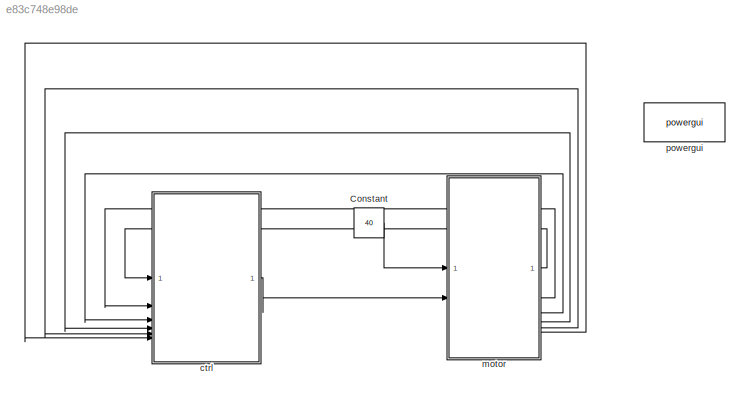
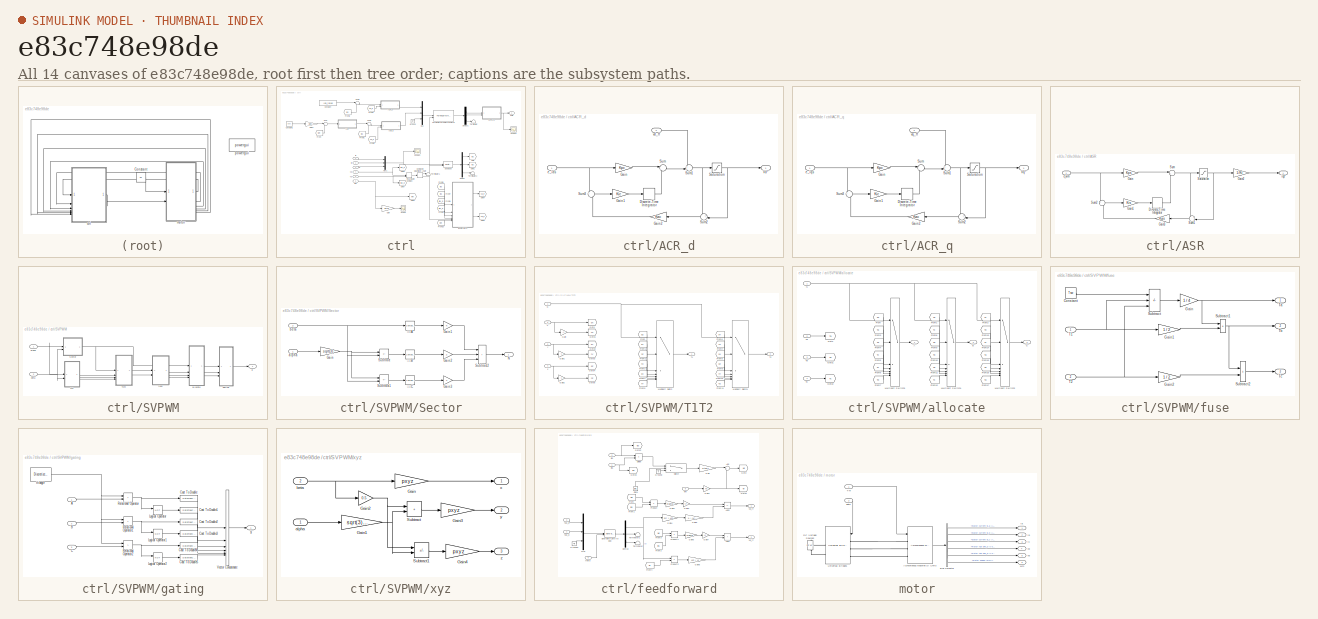
[diagram: thumbnail index - all 14 canvases of the model, root first then tree order]
MODEL slx_e83c748e98de
KIND model
CONFIG AbsTol = auto
CONFIG EnableMultiTasking = off
CONFIG FixedStep = auto
CONFIG MaxStep = auto
CONFIG MinStep = auto
CONFIG RelTol = 1e-3
CONFIG SampleTimeConstraint = Unconstrained
CONFIG SolverName = FixedStepDiscrete
CONFIG StartTime = 0.0
CONFIG StopTime = 1
BLOCK [Constant] Constant
  Value = 40
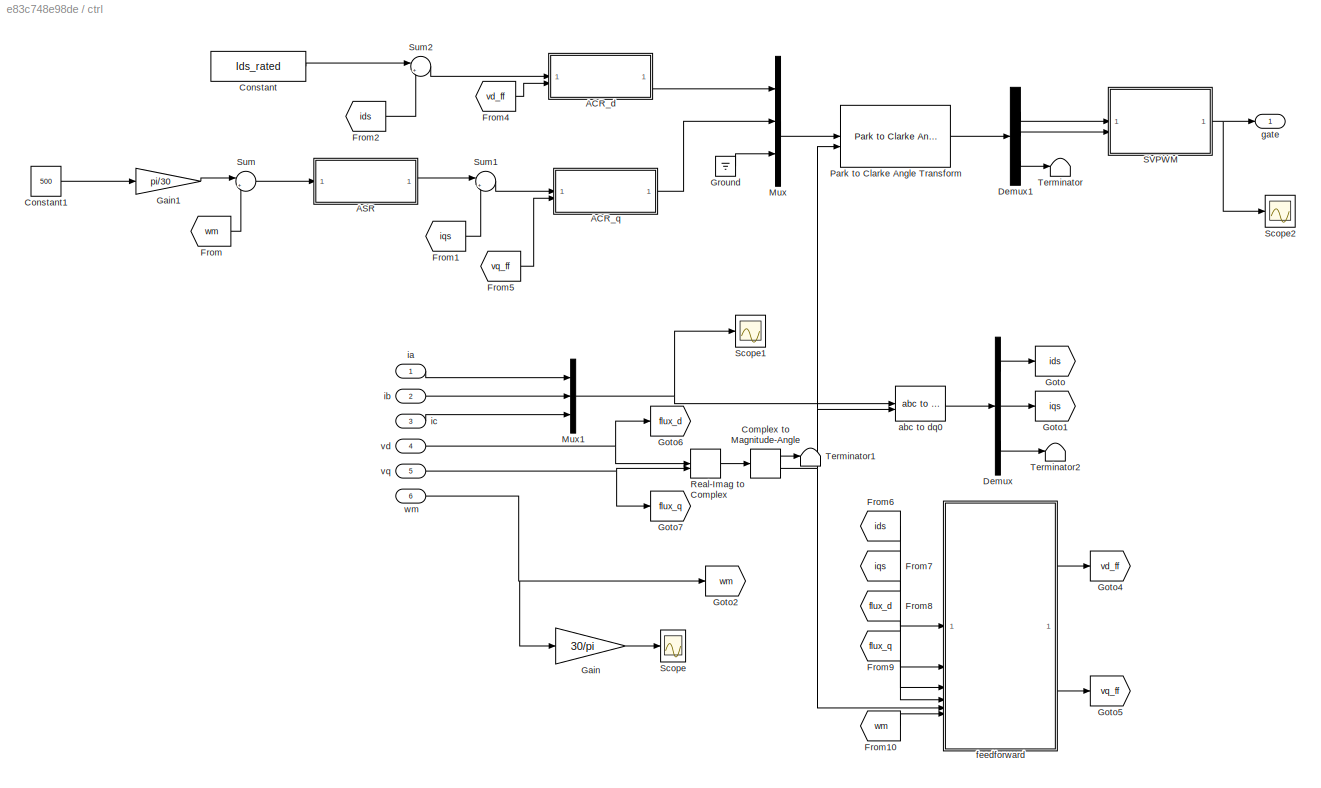
BLOCK [SubSystem] ctrl
BLOCK [SubSystem] ctrl/ACR_d
BLOCK [DiscreteIntegrator] ctrl/ACR_d/Discrete-Time Integrator
  ICPrevOutput = DiscIntNeverNeededParam
  ICPrevScaledInput = DiscIntNeverNeededParam
  InitialConditionSetting = Auto
  SampleTime = -1
BLOCK [Gain] ctrl/ACR_d/Gain
  Gain = Kpc
BLOCK [Gain] ctrl/ACR_d/Gain1
  Gain = Kic
BLOCK [Gain] ctrl/ACR_d/Gain2
  Gain = Kac
BLOCK [Saturate] ctrl/ACR_d/Saturation
  LowerLimit = -V_max * 2
  UpperLimit = V_max * 2
BLOCK [Sum] ctrl/ACR_d/Sum
  Inputs = |++
BLOCK [Sum] ctrl/ACR_d/Sum1
  Inputs = ++|
BLOCK [Sum] ctrl/ACR_d/Sum2
  Inputs = +-|
BLOCK [Sum] ctrl/ACR_d/Sum3
  Inputs = +|-
BLOCK [Outport] ctrl/ACR_d/Vd*
BLOCK [Inport] ctrl/ACR_d/e_ids
BLOCK [Inport] ctrl/ACR_d/vd_ff
  Port = 2
BLOCK [SubSystem] ctrl/ACR_q
BLOCK [DiscreteIntegrator] ctrl/ACR_q/Discrete-Time Integrator
  ICPrevOutput = DiscIntNeverNeededParam
  ICPrevScaledInput = DiscIntNeverNeededParam
  InitialConditionSetting = Auto
  SampleTime = -1
BLOCK [Gain] ctrl/ACR_q/Gain
  Gain = Kpc
BLOCK [Gain] ctrl/ACR_q/Gain1
  Gain = Kic
BLOCK [Gain] ctrl/ACR_q/Gain2
  Gain = Kac
BLOCK [Saturate] ctrl/ACR_q/Saturation
  LowerLimit = -V_max * 2
  UpperLimit = V_max * 2
BLOCK [Sum] ctrl/ACR_q/Sum
  Inputs = |++
BLOCK [Sum] ctrl/ACR_q/Sum1
  Inputs = ++|
BLOCK [Sum] ctrl/ACR_q/Sum2
  Inputs = +-|
BLOCK [Sum] ctrl/ACR_q/Sum3
  Inputs = +|-
BLOCK [Outport] ctrl/ACR_q/Vq*
BLOCK [Inport] ctrl/ACR_q/e_iqs
BLOCK [Inport] ctrl/ACR_q/vq_ff
  Port = 2
BLOCK [SubSystem] ctrl/ASR
BLOCK [DiscreteIntegrator] ctrl/ASR/Discrete-Time Integrator
  ICPrevOutput = DiscIntNeverNeededParam
  ICPrevScaledInput = DiscIntNeverNeededParam
  InitialConditionSetting = Auto
  SampleTime = -1
BLOCK [Gain] ctrl/ASR/Gain
  Gain = Kps
BLOCK [Gain] ctrl/ASR/Gain1
  Gain = Kis
BLOCK [Gain] ctrl/ASR/Gain2
  Gain = 1/Kt
BLOCK [Gain] ctrl/ASR/Gain3
  Gain = Kas
  NameLocation = top
BLOCK [Saturate] ctrl/ASR/Saturation
  LowerLimit = -Te_rated
  UpperLimit = Te_rated
BLOCK [Sum] ctrl/ASR/Sum
  Inputs = |++
BLOCK [Sum] ctrl/ASR/Sum1
  Inputs = +-|
  NameLocation = top
BLOCK [Sum] ctrl/ASR/Sum2
  Inputs = +|-
BLOCK [Inport] ctrl/ASR/e_wm
BLOCK [Outport] ctrl/ASR/iqs*
BLOCK [ComplexToMagnitudeAngle] ctrl/Complex to Magnitude-Angle
BLOCK [Constant] ctrl/Constant
  Value = Ids_rated
BLOCK [Constant] ctrl/Constant1
  Value = 500
BLOCK [Demux] ctrl/Demux
  Outputs = 3
BLOCK [Demux] ctrl/Demux1
  Outputs = 3
BLOCK [From] ctrl/From
  GotoTag = wm
BLOCK [From] ctrl/From1
  GotoTag = iqs
BLOCK [From] ctrl/From10
  GotoTag = wm
BLOCK [From] ctrl/From2
  GotoTag = ids
BLOCK [From] ctrl/From4
  GotoTag = vd_ff
BLOCK [From] ctrl/From5
  GotoTag = vq_ff
BLOCK [From] ctrl/From6
  GotoTag = ids
BLOCK [From] ctrl/From7
  GotoTag = iqs
BLOCK [From] ctrl/From8
  GotoTag = flux_d
BLOCK [From] ctrl/From9
  GotoTag = flux_q
BLOCK [Gain] ctrl/Gain
  Gain = 30/pi
BLOCK [Gain] ctrl/Gain1
  Gain = pi/30
BLOCK [Goto] ctrl/Goto
  GotoTag = ids
BLOCK [Goto] ctrl/Goto1
  GotoTag = iqs
BLOCK [Goto] ctrl/Goto2
  GotoTag = wm
BLOCK [Goto] ctrl/Goto4
  GotoTag = vd_ff
BLOCK [Goto] ctrl/Goto5
  GotoTag = vq_ff
BLOCK [Goto] ctrl/Goto6
  GotoTag = flux_d
BLOCK [Goto] ctrl/Goto7
  GotoTag = flux_q
BLOCK [Ground] ctrl/Ground
BLOCK [Mux] ctrl/Mux
  DisplayOption = bar
  Inputs = 3
BLOCK [Mux] ctrl/Mux1
  DisplayOption = bar
  Inputs = 3
BLOCK [Reference] ctrl/Park to Clarke Angle Transform  REF=eeTransforms/Park to Clarke
Angle Transform
  SourceBlock = eeTransforms/Park to Clarke\nAngle Transform
  SourceType = Park to Clarke Angle Transform
BLOCK [RealImagToComplex] ctrl/Real-Imag to Complex
BLOCK [SubSystem] ctrl/SVPWM
BLOCK [SubSystem] ctrl/SVPWM/Sector
BLOCK [Gain] ctrl/SVPWM/Sector/Gain
  Gain = sqrt(3)
BLOCK [Gain] ctrl/SVPWM/Sector/Gain1
BLOCK [Gain] ctrl/SVPWM/Sector/Gain2
  Gain = 2
BLOCK [Gain] ctrl/SVPWM/Sector/Gain3
  Gain = 4
BLOCK [Outport] ctrl/SVPWM/Sector/N
BLOCK [Sum] ctrl/SVPWM/Sector/Subtract
  IconShape = rectangular
  Inputs = +-
BLOCK [Sum] ctrl/SVPWM/Sector/Subtract1
  IconShape = rectangular
  Inputs = --
BLOCK [Sum] ctrl/SVPWM/Sector/Subtract2
  IconShape = rectangular
  Inputs = +++
BLOCK [Inport] ctrl/SVPWM/Sector/alpha
BLOCK [Inport] ctrl/SVPWM/Sector/beta
  Port = 2
BLOCK [Reference] ctrl/SVPWM/Sector/准则A  REF=simulink/Logic and Bit
Operations/Compare
To Constant
  SourceBlock = simulink/Logic and Bit\nOperations/Compare\nTo Constant
  SourceType = Compare To Constant
BLOCK [Reference] ctrl/SVPWM/Sector/准则B  REF=simulink/Logic and Bit
Operations/Compare
To Constant
  SourceBlock = simulink/Logic and Bit\nOperations/Compare\nTo Constant
  SourceType = Compare To Constant
BLOCK [Reference] ctrl/SVPWM/Sector/准则C  REF=simulink/Logic and Bit
Operations/Compare
To Constant
  SourceBlock = simulink/Logic and Bit\nOperations/Compare\nTo Constant
  SourceType = Compare To Constant
BLOCK [SubSystem] ctrl/SVPWM/T1T2
BLOCK [From] ctrl/SVPWM/T1T2/From
  GotoTag = pZ
BLOCK [From] ctrl/SVPWM/T1T2/From1
  GotoTag = pY
BLOCK [From] ctrl/SVPWM/T1T2/From10
  GotoTag = nY
BLOCK [From] ctrl/SVPWM/T1T2/From11
  GotoTag = nZ
BLOCK [From] ctrl/SVPWM/T1T2/From2
  GotoTag = nZ
BLOCK [From] ctrl/SVPWM/T1T2/From3
  GotoTag = nX
BLOCK [From] ctrl/SVPWM/T1T2/From4
  GotoTag = pX
BLOCK [From] ctrl/SVPWM/T1T2/From5
  GotoTag = nY
BLOCK [From] ctrl/SVPWM/T1T2/From6
  GotoTag = pY
BLOCK [From] ctrl/SVPWM/T1T2/From7
  GotoTag = nX
BLOCK [From] ctrl/SVPWM/T1T2/From8
  GotoTag = pX
BLOCK [From] ctrl/SVPWM/T1T2/From9
  GotoTag = pZ
BLOCK [Gain] ctrl/SVPWM/T1T2/Gain
  Gain = -1
BLOCK [Gain] ctrl/SVPWM/T1T2/Gain1
  Gain = -1
BLOCK [Gain] ctrl/SVPWM/T1T2/Gain2
  Gain = -1
BLOCK [Goto] ctrl/SVPWM/T1T2/Goto
  GotoTag = pX
BLOCK [Goto] ctrl/SVPWM/T1T2/Goto1
  GotoTag = nX
BLOCK [Goto] ctrl/SVPWM/T1T2/Goto2
  GotoTag = pY
BLOCK [Goto] ctrl/SVPWM/T1T2/Goto3
  GotoTag = nY
BLOCK [Goto] ctrl/SVPWM/T1T2/Goto4
  GotoTag = pZ
BLOCK [Goto] ctrl/SVPWM/T1T2/Goto5
  GotoTag = nZ
BLOCK [MultiPortSwitch] ctrl/SVPWM/T1T2/Multiport Switch
  InputSameDT = off
  Inputs = 6
  SaturateOnIntegerOverflow = off
BLOCK [MultiPortSwitch] ctrl/SVPWM/T1T2/Multiport Switch1
  InputSameDT = off
  Inputs = 6
  SaturateOnIntegerOverflow = off
BLOCK [Inport] ctrl/SVPWM/T1T2/N
BLOCK [Outport] ctrl/SVPWM/T1T2/T1
BLOCK [Outport] ctrl/SVPWM/T1T2/T2
  Port = 2
BLOCK [Inport] ctrl/SVPWM/T1T2/X
  Port = 2
BLOCK [Inport] ctrl/SVPWM/T1T2/y
  Port = 3
BLOCK [Inport] ctrl/SVPWM/T1T2/z
  Port = 4
BLOCK [SubSystem] ctrl/SVPWM/allocate
BLOCK [Outport] ctrl/SVPWM/allocate/A
BLOCK [Outport] ctrl/SVPWM/allocate/B
  Port = 2
BLOCK [Outport] ctrl/SVPWM/allocate/C
  Port = 3
BLOCK [From] ctrl/SVPWM/allocate/From
  GotoTag = Tb
BLOCK [From] ctrl/SVPWM/allocate/From1
  GotoTag = Ta
BLOCK [From] ctrl/SVPWM/allocate/From10
  GotoTag = Tb
BLOCK [From] ctrl/SVPWM/allocate/From11
  GotoTag = Ta
BLOCK [From] ctrl/SVPWM/allocate/From12
  GotoTag = Tc
BLOCK [From] ctrl/SVPWM/allocate/From13
  GotoTag = Tb
BLOCK [From] ctrl/SVPWM/allocate/From14
  GotoTag = Tc
BLOCK [From] ctrl/SVPWM/allocate/From15
  GotoTag = Ta
BLOCK [From] ctrl/SVPWM/allocate/From16
  GotoTag = Tb
BLOCK [From] ctrl/SVPWM/allocate/From17
  GotoTag = Ta
BLOCK [From] ctrl/SVPWM/allocate/From2
  GotoTag = Tc
BLOCK [From] ctrl/SVPWM/allocate/From3
  GotoTag = Ta
BLOCK [From] ctrl/SVPWM/allocate/From4
  GotoTag = Ta
BLOCK [From] ctrl/SVPWM/allocate/From5
  GotoTag = Tc
BLOCK [From] ctrl/SVPWM/allocate/From6
  GotoTag = Tc
BLOCK [From] ctrl/SVPWM/allocate/From7
  GotoTag = Tb
BLOCK [From] ctrl/SVPWM/allocate/From8
  GotoTag = Tc
BLOCK [From] ctrl/SVPWM/allocate/From9
  GotoTag = Tb
BLOCK [Goto] ctrl/SVPWM/allocate/Goto
  GotoTag = Ta
BLOCK [Goto] ctrl/SVPWM/allocate/Goto1
  GotoTag = Tb
BLOCK [Goto] ctrl/SVPWM/allocate/Goto2
  GotoTag = Tc
BLOCK [MultiPortSwitch] ctrl/SVPWM/allocate/Multiport Switch1
  InputSameDT = off
  Inputs = 6
  SaturateOnIntegerOverflow = off
BLOCK [MultiPortSwitch] ctrl/SVPWM/allocate/Multiport Switch2
  InputSameDT = off
  Inputs = 6
  SaturateOnIntegerOverflow = off
BLOCK [MultiPortSwitch] ctrl/SVPWM/allocate/Multiport Switch3
  InputSameDT = off
  Inputs = 6
  SaturateOnIntegerOverflow = off
BLOCK [Inport] ctrl/SVPWM/allocate/N
BLOCK [Inport] ctrl/SVPWM/allocate/Ta
  Port = 2
BLOCK [Inport] ctrl/SVPWM/allocate/Tb
  Port = 3
BLOCK [Inport] ctrl/SVPWM/allocate/Tc
  Port = 4
BLOCK [Inport] ctrl/SVPWM/alpha
BLOCK [Inport] ctrl/SVPWM/beta
  Port = 2
BLOCK [SubSystem] ctrl/SVPWM/fuse
BLOCK [Constant] ctrl/SVPWM/fuse/Constant
  Value = Tsw
BLOCK [Gain] ctrl/SVPWM/fuse/Gain
  Gain = 1 / 4
BLOCK [Gain] ctrl/SVPWM/fuse/Gain1
  Gain = 1 / 2
BLOCK [Gain] ctrl/SVPWM/fuse/Gain2
  Gain = 1 / 2
BLOCK [Sum] ctrl/SVPWM/fuse/Subtract
  IconShape = rectangular
  Inputs = +--
BLOCK [Sum] ctrl/SVPWM/fuse/Subtract1
  IconShape = rectangular
BLOCK [Sum] ctrl/SVPWM/fuse/Subtract2
  IconShape = rectangular
BLOCK [Inport] ctrl/SVPWM/fuse/T1
BLOCK [Inport] ctrl/SVPWM/fuse/T2
  Port = 2
BLOCK [Outport] ctrl/SVPWM/fuse/Ta
BLOCK [Outport] ctrl/SVPWM/fuse/Tb
  Port = 2
BLOCK [Outport] ctrl/SVPWM/fuse/Tc
  Port = 3
BLOCK [Outport] ctrl/SVPWM/g
BLOCK [SubSystem] ctrl/SVPWM/gating
BLOCK [Inport] ctrl/SVPWM/gating/A
BLOCK [Inport] ctrl/SVPWM/gating/B
  Port = 2
BLOCK [Inport] ctrl/SVPWM/gating/C
  Port = 3
BLOCK [DataTypeConversion] ctrl/SVPWM/gating/Cast To Double
  OutDataTypeStr = double
  RndMeth = Floor
  SaturateOnIntegerOverflow = off
BLOCK [DataTypeConversion] ctrl/SVPWM/gating/Cast To Double1
  OutDataTypeStr = double
  RndMeth = Floor
  SaturateOnIntegerOverflow = off
BLOCK [DataTypeConversion] ctrl/SVPWM/gating/Cast To Double2
  OutDataTypeStr = double
  RndMeth = Floor
  SaturateOnIntegerOverflow = off
BLOCK [DataTypeConversion] ctrl/SVPWM/gating/Cast To Double3
  OutDataTypeStr = double
  RndMeth = Floor
  SaturateOnIntegerOverflow = off
BLOCK [DataTypeConversion] ctrl/SVPWM/gating/Cast To Double4
  OutDataTypeStr = double
  RndMeth = Floor
  SaturateOnIntegerOverflow = off
BLOCK [DataTypeConversion] ctrl/SVPWM/gating/Cast To Double5
  OutDataTypeStr = double
  RndMeth = Floor
  SaturateOnIntegerOverflow = off
BLOCK [Logic] ctrl/SVPWM/gating/Logical Operator
  AllPortsSameDT = off
  Operator = NOT
  OutDataTypeStr = boolean
BLOCK [Logic] ctrl/SVPWM/gating/Logical Operator1
  AllPortsSameDT = off
  Operator = NOT
  OutDataTypeStr = boolean
BLOCK [Logic] ctrl/SVPWM/gating/Logical Operator2
  AllPortsSameDT = off
  Operator = NOT
  OutDataTypeStr = boolean
BLOCK [RelationalOperator] ctrl/SVPWM/gating/Relational Operator
  InputSameDT = off
  Operator = >
  OutDataTypeStr = boolean
  RndMeth = Simplest
BLOCK [RelationalOperator] ctrl/SVPWM/gating/Relational Operator1
  InputSameDT = off
  Operator = >
  OutDataTypeStr = boolean
  RndMeth = Simplest
BLOCK [RelationalOperator] ctrl/SVPWM/gating/Relational Operator2
  InputSameDT = off
  Operator = >
  OutDataTypeStr = boolean
  RndMeth = Simplest
BLOCK [Concatenate] ctrl/SVPWM/gating/Vector Concatenate
  NumInputs = 6
BLOCK [Outport] ctrl/SVPWM/gating/g
BLOCK [Reference] ctrl/SVPWM/gating/triangle  REF=discretizing/Discretized  (lib defined in mdl_5048aa1cd587)
Repeating Sequence
  SourceBlock = discretizing/Discretized\nRepeating Sequence
  SourceType = DiscretizedRepeatingTable
BLOCK [SubSystem] ctrl/SVPWM/xyz
BLOCK [Gain] ctrl/SVPWM/xyz/Gain
  Gain = pxyz
BLOCK [Gain] ctrl/SVPWM/xyz/Gain1
  Gain = sqrt(3) / 2
BLOCK [Gain] ctrl/SVPWM/xyz/Gain2
  Gain = 0.5
BLOCK [Gain] ctrl/SVPWM/xyz/Gain3
  Gain = pxyz
BLOCK [Gain] ctrl/SVPWM/xyz/Gain4
  Gain = pxyz
BLOCK [Sum] ctrl/SVPWM/xyz/Subtract
  IconShape = rectangular
BLOCK [Sum] ctrl/SVPWM/xyz/Subtract1
  IconShape = rectangular
  Inputs = +-
BLOCK [Inport] ctrl/SVPWM/xyz/alpha
BLOCK [Inport] ctrl/SVPWM/xyz/beta
  Port = 2
BLOCK [Outport] ctrl/SVPWM/xyz/x
BLOCK [Outport] ctrl/SVPWM/xyz/y
  Port = 2
BLOCK [Outport] ctrl/SVPWM/xyz/z
  Port = 3
BLOCK [Scope] ctrl/Scope
  Floating = off
  NumInputPorts = 1
  ScopeSpecificationString = Simulink.scopes.TimeScopeBlockCfg('CurrentConfiguration', extmgr.ConfigurationSet(extmgr.Configuration('Core','General UI',true),extmgr.Configuration('Core','Source UI',true),extmgr.Configuration('Sources','WiredSimulink',true),extmgr.Configuration('Visuals','Time Domain',true,'SerializedDisplays',{struct('MinYLimReal','-140.00871','MaxYLimReal','587.69926','YLabelReal','','MinYLimMag',' 0.00000',...<+1439ch>
BLOCK [Scope] ctrl/Scope1
  Floating = off
  NumInputPorts = 1
  ScopeSpecificationString = Simulink.scopes.TimeScopeBlockCfg('CurrentConfiguration', extmgr.ConfigurationSet(extmgr.Configuration('Core','General UI',true),extmgr.Configuration('Core','Source UI',true),extmgr.Configuration('Sources','WiredSimulink',true,'DataLoggingVariableName','ScopeData1'),extmgr.Configuration('Visuals','Time Domain',true,'SerializedDisplays',{struct('MinYLimReal','-45.94671','MaxYLimReal','49.52648','YL...<+1478ch>
BLOCK [Scope] ctrl/Scope2
  Floating = off
  NumInputPorts = 1
  ScopeSpecificationString = Simulink.scopes.TimeScopeBlockCfg('CurrentConfiguration', extmgr.ConfigurationSet(extmgr.Configuration('Core','General UI',true),extmgr.Configuration('Core','Source UI',true),extmgr.Configuration('Sources','WiredSimulink',true,'DataLoggingVariableName','ScopeData2'),extmgr.Configuration('Visuals','Time Domain',true,'SerializedDisplays',{struct('MinYLimReal','-0.125','MaxYLimReal','1.125','YLabelRe...<+1646ch>
BLOCK [Sum] ctrl/Sum
  Inputs = |+-
BLOCK [Sum] ctrl/Sum1
  Inputs = |+-
BLOCK [Sum] ctrl/Sum2
  Inputs = |+-
BLOCK [Terminator] ctrl/Terminator
BLOCK [Terminator] ctrl/Terminator1
BLOCK [Terminator] ctrl/Terminator2
BLOCK [Reference] ctrl/abc to dq0  REF=spsabctodq0Lib/abc to dq0
  LibrarySourceBlock = sps_lib/Control/abc to dq0
  SourceBlock = spsabctodq0Lib/abc to dq0
  SourceType = abc to dq0 Transformation
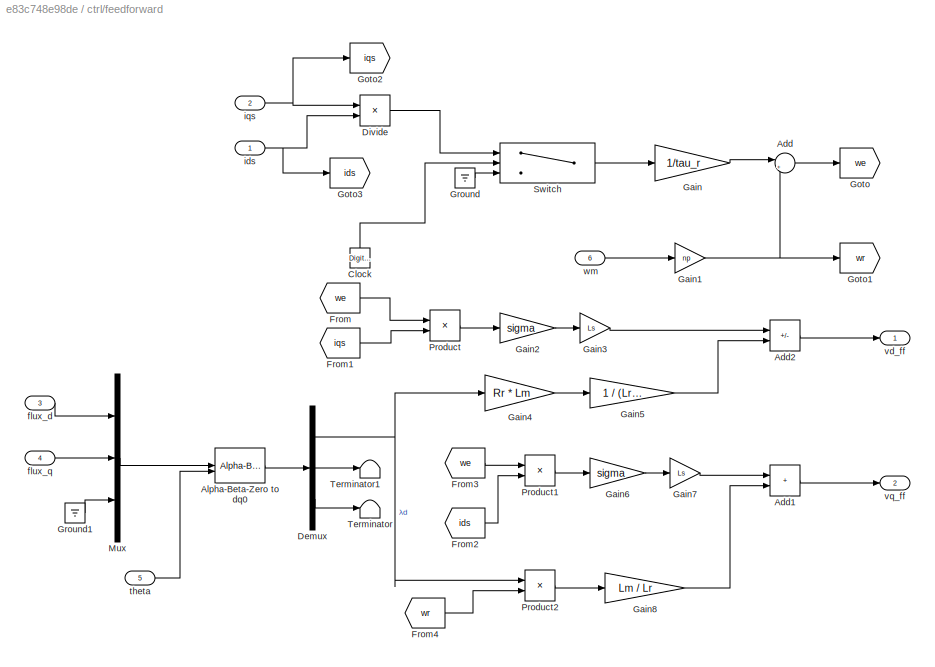
BLOCK [SubSystem] ctrl/feedforward
BLOCK [Sum] ctrl/feedforward/Add
  Inputs = |++
BLOCK [Sum] ctrl/feedforward/Add1
  IconShape = rectangular
BLOCK [Sum] ctrl/feedforward/Add2
  IconShape = rectangular
  Inputs = --
BLOCK [Reference] ctrl/feedforward/Alpha-Beta-Zero to dq0  REF=spsAlphaBetaZerotodq0Lib/Alpha-Beta-Zero
to dq0
  LibrarySourceBlock = sps_lib/Control/Alpha-Beta-Zero\nto dq0
  SourceBlock = spsAlphaBetaZerotodq0Lib/Alpha-Beta-Zero\nto dq0
  SourceType = Alpha-Beta-Zero to dq0 Transformation
BLOCK [DigitalClock] ctrl/feedforward/Clock
  NameLocation = right
  SampleTime = 1.0
BLOCK [Demux] ctrl/feedforward/Demux
  Outputs = 3
BLOCK [Product] ctrl/feedforward/Divide
  Inputs = */
BLOCK [From] ctrl/feedforward/From
  GotoTag = we
BLOCK [From] ctrl/feedforward/From1
  GotoTag = iqs
BLOCK [From] ctrl/feedforward/From2
  GotoTag = ids
BLOCK [From] ctrl/feedforward/From3
  GotoTag = we
BLOCK [From] ctrl/feedforward/From4
  GotoTag = wr
BLOCK [Gain] ctrl/feedforward/Gain
  Gain = 1/tau_r
BLOCK [Gain] ctrl/feedforward/Gain1
  Gain = np
BLOCK [Gain] ctrl/feedforward/Gain2
  Gain = sigma
BLOCK [Gain] ctrl/feedforward/Gain3
  Gain = Ls
BLOCK [Gain] ctrl/feedforward/Gain4
  Gain = Rr * Lm
BLOCK [Gain] ctrl/feedforward/Gain5
  Gain = 1 / (Lr ^ 2)
BLOCK [Gain] ctrl/feedforward/Gain6
  Gain = sigma
BLOCK [Gain] ctrl/feedforward/Gain7
  Gain = Ls
BLOCK [Gain] ctrl/feedforward/Gain8
  Gain = Lm / Lr
BLOCK [Goto] ctrl/feedforward/Goto
  GotoTag = we
BLOCK [Goto] ctrl/feedforward/Goto1
  GotoTag = wr
BLOCK [Goto] ctrl/feedforward/Goto2
  GotoTag = iqs
BLOCK [Goto] ctrl/feedforward/Goto3
  GotoTag = ids
BLOCK [Ground] ctrl/feedforward/Ground
BLOCK [Ground] ctrl/feedforward/Ground1
BLOCK [Mux] ctrl/feedforward/Mux
  DisplayOption = bar
  Inputs = 3
BLOCK [Product] ctrl/feedforward/Product
BLOCK [Product] ctrl/feedforward/Product1
BLOCK [Product] ctrl/feedforward/Product2
BLOCK [Switch] ctrl/feedforward/Switch
  Criteria = u2 > Threshold
  InputSameDT = off
  SaturateOnIntegerOverflow = off
  Threshold = Tsw
BLOCK [Terminator] ctrl/feedforward/Terminator
BLOCK [Terminator] ctrl/feedforward/Terminator1
BLOCK [Inport] ctrl/feedforward/flux_d
  Port = 3
BLOCK [Inport] ctrl/feedforward/flux_q
  Port = 4
BLOCK [Inport] ctrl/feedforward/ids
BLOCK [Inport] ctrl/feedforward/iqs
  Port = 2
BLOCK [Inport] ctrl/feedforward/theta
  Port = 5
BLOCK [Outport] ctrl/feedforward/vd_ff
BLOCK [Outport] ctrl/feedforward/vq_ff
  Port = 2
BLOCK [Inport] ctrl/feedforward/wm
  Port = 6
BLOCK [Outport] ctrl/gate
BLOCK [Inport] ctrl/ia
  NameLocation = left
BLOCK [Inport] ctrl/ib
  NameLocation = left
  Port = 2
BLOCK [Inport] ctrl/ic
  NameLocation = left
  Port = 3
BLOCK [Inport] ctrl/vd
  NameLocation = left
  Port = 4
BLOCK [Inport] ctrl/vq
  NameLocation = left
  Port = 5
BLOCK [Inport] ctrl/wm
  NameLocation = left
  Port = 6
BLOCK [SubSystem] motor
BLOCK [Reference] motor/Asynchronous Machine SI Units  REF=spsAsynchronousMachineSIUnitsLib/Asynchronous Machine
SI Units
  LibrarySourceBlock = sps_lib/Electrical Machines/Asynchronous Machine\nSI Units
  SourceBlock = spsAsynchronousMachineSIUnitsLib/Asynchronous Machine\nSI Units
  SourceType = Asynchronous Machine
BLOCK [BusSelector] motor/Bus Selector
  OutputSignals = Stator measurements.Stator current is_a (A),Stator measurements.Stator current is_b (A),Stator measurements.Stator current is_c (A),Rotor measurements.Rotor flux phir_d (V s),Rotor measurements.Rotor flux phir_q (V s),Mechanical.Rotor speed (wm)
BLOCK [Reference] motor/DC Voltage Source2  REF=spsDCVoltageSourceLib/DC Voltage Source
  LibrarySourceBlock = sps_lib/Sources/DC Voltage Source
  NameLocation = right
  SourceBlock = spsDCVoltageSourceLib/DC Voltage Source
  SourceType = DC Voltage Source
BLOCK [Inport] motor/Tm
BLOCK [Reference] motor/Universal Bridge1  REF=spsUniversalBridgeLib/Universal Bridge
  LibrarySourceBlock = sps_lib/Power Electronics/Universal Bridge
  SourceBlock = spsUniversalBridgeLib/Universal Bridge
  SourceType = Universal Bridge
BLOCK [Inport] motor/gate
  Port = 2
BLOCK [Outport] motor/ia
  NameLocation = right
BLOCK [Outport] motor/ib
  NameLocation = right
  Port = 2
BLOCK [Outport] motor/ic
  NameLocation = right
  Port = 3
BLOCK [Outport] motor/vd
  NameLocation = right
  Port = 4
BLOCK [Outport] motor/vq
  NameLocation = right
  Port = 5
BLOCK [Outport] motor/wm
  NameLocation = right
  Port = 6
BLOCK [Reference] powergui  REF=sps_lib/powergui
  Priority = 1
  SourceBlock = sps_lib/powergui
  SourceType = PSB option menu block
LINE Constant:1 -> motor:1
LINE ctrl/ACR_d/Discrete-Time Integrator:1 -> ctrl/ACR_d/Sum:2
LINE ctrl/ACR_d/Gain1:1 -> ctrl/ACR_d/Discrete-Time Integrator:1
LINE ctrl/ACR_d/Gain2:1 -> ctrl/ACR_d/Sum3:2
LINE ctrl/ACR_d/Gain:1 -> ctrl/ACR_d/Sum:1
NET ctrl/ACR_d/Saturation:1 -> ctrl/ACR_d/Sum2:2, ctrl/ACR_d/Vd*:1
NET ctrl/ACR_d/Sum1:1 -> ctrl/ACR_d/Saturation:1, ctrl/ACR_d/Sum2:1
LINE ctrl/ACR_d/Sum2:1 -> ctrl/ACR_d/Gain2:1
LINE ctrl/ACR_d/Sum3:1 -> ctrl/ACR_d/Gain1:1
LINE ctrl/ACR_d/Sum:1 -> ctrl/ACR_d/Sum1:2
NET ctrl/ACR_d/e_ids:1 -> ctrl/ACR_d/Gain:1, ctrl/ACR_d/Sum3:1
LINE ctrl/ACR_d/vd_ff:1 -> ctrl/ACR_d/Sum1:1
LINE ctrl/ACR_d:1 -> ctrl/Mux:1
LINE ctrl/ACR_q/Discrete-Time Integrator:1 -> ctrl/ACR_q/Sum:2
LINE ctrl/ACR_q/Gain1:1 -> ctrl/ACR_q/Discrete-Time Integrator:1
LINE ctrl/ACR_q/Gain2:1 -> ctrl/ACR_q/Sum3:2
LINE ctrl/ACR_q/Gain:1 -> ctrl/ACR_q/Sum:1
NET ctrl/ACR_q/Saturation:1 -> ctrl/ACR_q/Sum2:2, ctrl/ACR_q/Vq*:1
NET ctrl/ACR_q/Sum1:1 -> ctrl/ACR_q/Saturation:1, ctrl/ACR_q/Sum2:1
LINE ctrl/ACR_q/Sum2:1 -> ctrl/ACR_q/Gain2:1
LINE ctrl/ACR_q/Sum3:1 -> ctrl/ACR_q/Gain1:1
LINE ctrl/ACR_q/Sum:1 -> ctrl/ACR_q/Sum1:2
NET ctrl/ACR_q/e_iqs:1 -> ctrl/ACR_q/Gain:1, ctrl/ACR_q/Sum3:1
LINE ctrl/ACR_q/vq_ff:1 -> ctrl/ACR_q/Sum1:1
LINE ctrl/ACR_q:1 -> ctrl/Mux:2
LINE ctrl/ASR/Discrete-Time Integrator:1 -> ctrl/ASR/Sum:2
LINE ctrl/ASR/Gain1:1 -> ctrl/ASR/Discrete-Time Integrator:1
LINE ctrl/ASR/Gain2:1 -> ctrl/ASR/iqs*:1
LINE ctrl/ASR/Gain3:1 -> ctrl/ASR/Sum2:2
LINE ctrl/ASR/Gain:1 -> ctrl/ASR/Sum:1
NET ctrl/ASR/Saturation:1 -> ctrl/ASR/Gain2:1, ctrl/ASR/Sum1:2
LINE ctrl/ASR/Sum1:1 -> ctrl/ASR/Gain3:1
LINE ctrl/ASR/Sum2:1 -> ctrl/ASR/Gain1:1
NET ctrl/ASR/Sum:1 -> ctrl/ASR/Saturation:1, ctrl/ASR/Sum1:1
NET ctrl/ASR/e_wm:1 -> ctrl/ASR/Gain:1, ctrl/ASR/Sum2:1
LINE ctrl/ASR:1 -> ctrl/Sum1:1
LINE ctrl/Complex to Magnitude-Angle:1 -> ctrl/Terminator1:1
NET ctrl/Complex to Magnitude-Angle:2 -> ctrl/Park to Clarke Angle Transform:2, ctrl/abc to dq0:2, ctrl/feedforward:5
LINE ctrl/Constant1:1 -> ctrl/Gain1:1
LINE ctrl/Constant:1 -> ctrl/Sum2:1
LINE ctrl/Demux1:1 -> ctrl/SVPWM:1
LINE ctrl/Demux1:2 -> ctrl/SVPWM:2
LINE ctrl/Demux1:3 -> ctrl/Terminator:1
LINE ctrl/Demux:1 -> ctrl/Goto:1
LINE ctrl/Demux:2 -> ctrl/Goto1:1
LINE ctrl/Demux:3 -> ctrl/Terminator2:1
LINE ctrl/From10:1 -> ctrl/feedforward:6
LINE ctrl/From1:1 -> ctrl/Sum1:2
LINE ctrl/From2:1 -> ctrl/Sum2:2
LINE ctrl/From4:1 -> ctrl/ACR_d:2
LINE ctrl/From5:1 -> ctrl/ACR_q:2
LINE ctrl/From6:1 -> ctrl/feedforward:1
LINE ctrl/From7:1 -> ctrl/feedforward:2
LINE ctrl/From8:1 -> ctrl/feedforward:3
LINE ctrl/From9:1 -> ctrl/feedforward:4
LINE ctrl/From:1 -> ctrl/Sum:2
LINE ctrl/Gain1:1 -> ctrl/Sum:1
LINE ctrl/Gain:1 -> ctrl/Scope:1
LINE ctrl/Ground:1 -> ctrl/Mux:3
NET ctrl/Mux1:1 -> ctrl/Scope1:1, ctrl/abc to dq0:1
LINE ctrl/Mux:1 -> ctrl/Park to Clarke Angle Transform:1
LINE ctrl/Park to Clarke Angle Transform:1 -> ctrl/Demux1:1
LINE ctrl/Real-Imag to Complex:1 -> ctrl/Complex to Magnitude-Angle:1
LINE ctrl/SVPWM/Sector/Gain1:1 -> ctrl/SVPWM/Sector/Subtract2:1
LINE ctrl/SVPWM/Sector/Gain2:1 -> ctrl/SVPWM/Sector/Subtract2:2
LINE ctrl/SVPWM/Sector/Gain3:1 -> ctrl/SVPWM/Sector/Subtract2:3
NET ctrl/SVPWM/Sector/Gain:1 -> ctrl/SVPWM/Sector/Subtract1:1, ctrl/SVPWM/Sector/Subtract:1
LINE ctrl/SVPWM/Sector/Subtract1:1 -> ctrl/SVPWM/Sector/准则C:1
LINE ctrl/SVPWM/Sector/Subtract2:1 -> ctrl/SVPWM/Sector/N:1
LINE ctrl/SVPWM/Sector/Subtract:1 -> ctrl/SVPWM/Sector/准则B:1
LINE ctrl/SVPWM/Sector/alpha:1 -> ctrl/SVPWM/Sector/Gain:1
NET ctrl/SVPWM/Sector/beta:1 -> ctrl/SVPWM/Sector/Subtract1:2, ctrl/SVPWM/Sector/Subtract:2, ctrl/SVPWM/Sector/准则A:1
LINE ctrl/SVPWM/Sector/准则A:1 -> ctrl/SVPWM/Sector/Gain1:1
LINE ctrl/SVPWM/Sector/准则B:1 -> ctrl/SVPWM/Sector/Gain2:1
LINE ctrl/SVPWM/Sector/准则C:1 -> ctrl/SVPWM/Sector/Gain3:1
NET ctrl/SVPWM/Sector:1 -> ctrl/SVPWM/T1T2:1, ctrl/SVPWM/allocate:1
LINE ctrl/SVPWM/T1T2/From10:1 -> ctrl/SVPWM/T1T2/Multiport Switch1:6
LINE ctrl/SVPWM/T1T2/From11:1 -> ctrl/SVPWM/T1T2/Multiport Switch1:7
LINE ctrl/SVPWM/T1T2/From1:1 -> ctrl/SVPWM/T1T2/Multiport Switch:3
LINE ctrl/SVPWM/T1T2/From2:1 -> ctrl/SVPWM/T1T2/Multiport Switch:4
LINE ctrl/SVPWM/T1T2/From3:1 -> ctrl/SVPWM/T1T2/Multiport Switch:5
LINE ctrl/SVPWM/T1T2/From4:1 -> ctrl/SVPWM/T1T2/Multiport Switch:6
LINE ctrl/SVPWM/T1T2/From5:1 -> ctrl/SVPWM/T1T2/Multiport Switch:7
LINE ctrl/SVPWM/T1T2/From6:1 -> ctrl/SVPWM/T1T2/Multiport Switch1:2
LINE ctrl/SVPWM/T1T2/From7:1 -> ctrl/SVPWM/T1T2/Multiport Switch1:3
LINE ctrl/SVPWM/T1T2/From8:1 -> ctrl/SVPWM/T1T2/Multiport Switch1:4
LINE ctrl/SVPWM/T1T2/From9:1 -> ctrl/SVPWM/T1T2/Multiport Switch1:5
LINE ctrl/SVPWM/T1T2/From:1 -> ctrl/SVPWM/T1T2/Multiport Switch:2
LINE ctrl/SVPWM/T1T2/Gain1:1 -> ctrl/SVPWM/T1T2/Goto3:1
LINE ctrl/SVPWM/T1T2/Gain2:1 -> ctrl/SVPWM/T1T2/Goto5:1
LINE ctrl/SVPWM/T1T2/Gain:1 -> ctrl/SVPWM/T1T2/Goto1:1
LINE ctrl/SVPWM/T1T2/Multiport Switch1:1 -> ctrl/SVPWM/T1T2/T2:1
LINE ctrl/SVPWM/T1T2/Multiport Switch:1 -> ctrl/SVPWM/T1T2/T1:1
NET ctrl/SVPWM/T1T2/N:1 -> ctrl/SVPWM/T1T2/Multiport Switch1:1, ctrl/SVPWM/T1T2/Multiport Switch:1
NET ctrl/SVPWM/T1T2/X:1 -> ctrl/SVPWM/T1T2/Gain:1, ctrl/SVPWM/T1T2/Goto:1
NET ctrl/SVPWM/T1T2/y:1 -> ctrl/SVPWM/T1T2/Gain1:1, ctrl/SVPWM/T1T2/Goto2:1
NET ctrl/SVPWM/T1T2/z:1 -> ctrl/SVPWM/T1T2/Gain2:1, ctrl/SVPWM/T1T2/Goto4:1
LINE ctrl/SVPWM/T1T2:1 -> ctrl/SVPWM/fuse:1
LINE ctrl/SVPWM/T1T2:2 -> ctrl/SVPWM/fuse:2
LINE ctrl/SVPWM/allocate/From10:1 -> ctrl/SVPWM/allocate/Multiport Switch1:5
LINE ctrl/SVPWM/allocate/From11:1 -> ctrl/SVPWM/allocate/Multiport Switch1:6
LINE ctrl/SVPWM/allocate/From12:1 -> ctrl/SVPWM/allocate/Multiport Switch1:7
LINE ctrl/SVPWM/allocate/From13:1 -> ctrl/SVPWM/allocate/Multiport Switch2:3
LINE ctrl/SVPWM/allocate/From14:1 -> ctrl/SVPWM/allocate/Multiport Switch2:4
LINE ctrl/SVPWM/allocate/From15:1 -> ctrl/SVPWM/allocate/Multiport Switch2:5
LINE ctrl/SVPWM/allocate/From16:1 -> ctrl/SVPWM/allocate/Multiport Switch2:6
LINE ctrl/SVPWM/allocate/From17:1 -> ctrl/SVPWM/allocate/Multiport Switch2:7
LINE ctrl/SVPWM/allocate/From1:1 -> ctrl/SVPWM/allocate/Multiport Switch1:2
LINE ctrl/SVPWM/allocate/From2:1 -> ctrl/SVPWM/allocate/Multiport Switch2:2
LINE ctrl/SVPWM/allocate/From3:1 -> ctrl/SVPWM/allocate/Multiport Switch3:3
LINE ctrl/SVPWM/allocate/From4:1 -> ctrl/SVPWM/allocate/Multiport Switch3:4
LINE ctrl/SVPWM/allocate/From5:1 -> ctrl/SVPWM/allocate/Multiport Switch3:5
LINE ctrl/SVPWM/allocate/From6:1 -> ctrl/SVPWM/allocate/Multiport Switch3:6
LINE ctrl/SVPWM/allocate/From7:1 -> ctrl/SVPWM/allocate/Multiport Switch3:7
LINE ctrl/SVPWM/allocate/From8:1 -> ctrl/SVPWM/allocate/Multiport Switch1:3
LINE ctrl/SVPWM/allocate/From9:1 -> ctrl/SVPWM/allocate/Multiport Switch1:4
LINE ctrl/SVPWM/allocate/From:1 -> ctrl/SVPWM/allocate/Multiport Switch3:2
LINE ctrl/SVPWM/allocate/Multiport Switch1:1 -> ctrl/SVPWM/allocate/B:1
LINE ctrl/SVPWM/allocate/Multiport Switch2:1 -> ctrl/SVPWM/allocate/C:1
LINE ctrl/SVPWM/allocate/Multiport Switch3:1 -> ctrl/SVPWM/allocate/A:1
NET ctrl/SVPWM/allocate/N:1 -> ctrl/SVPWM/allocate/Multiport Switch1:1, ctrl/SVPWM/allocate/Multiport Switch2:1, ctrl/SVPWM/allocate/Multiport Switch3:1
LINE ctrl/SVPWM/allocate/Ta:1 -> ctrl/SVPWM/allocate/Goto:1
LINE ctrl/SVPWM/allocate/Tb:1 -> ctrl/SVPWM/allocate/Goto1:1
LINE ctrl/SVPWM/allocate/Tc:1 -> ctrl/SVPWM/allocate/Goto2:1
LINE ctrl/SVPWM/allocate:1 -> ctrl/SVPWM/gating:1
LINE ctrl/SVPWM/allocate:2 -> ctrl/SVPWM/gating:2
LINE ctrl/SVPWM/allocate:3 -> ctrl/SVPWM/gating:3
NET ctrl/SVPWM/alpha:1 -> ctrl/SVPWM/Sector:1, ctrl/SVPWM/xyz:1
NET ctrl/SVPWM/beta:1 -> ctrl/SVPWM/Sector:2, ctrl/SVPWM/xyz:2
LINE ctrl/SVPWM/fuse/Constant:1 -> ctrl/SVPWM/fuse/Subtract:1
LINE ctrl/SVPWM/fuse/Gain1:1 -> ctrl/SVPWM/fuse/Subtract1:2
LINE ctrl/SVPWM/fuse/Gain2:1 -> ctrl/SVPWM/fuse/Subtract2:2
NET ctrl/SVPWM/fuse/Gain:1 -> ctrl/SVPWM/fuse/Subtract1:1, ctrl/SVPWM/fuse/Ta:1
NET ctrl/SVPWM/fuse/Subtract1:1 -> ctrl/SVPWM/fuse/Subtract2:1, ctrl/SVPWM/fuse/Tb:1
LINE ctrl/SVPWM/fuse/Subtract2:1 -> ctrl/SVPWM/fuse/Tc:1
LINE ctrl/SVPWM/fuse/Subtract:1 -> ctrl/SVPWM/fuse/Gain:1
NET ctrl/SVPWM/fuse/T1:1 -> ctrl/SVPWM/fuse/Gain1:1, ctrl/SVPWM/fuse/Subtract:2
NET ctrl/SVPWM/fuse/T2:1 -> ctrl/SVPWM/fuse/Gain2:1, ctrl/SVPWM/fuse/Subtract:3
LINE ctrl/SVPWM/fuse:1 -> ctrl/SVPWM/allocate:2
LINE ctrl/SVPWM/fuse:2 -> ctrl/SVPWM/allocate:3
LINE ctrl/SVPWM/fuse:3 -> ctrl/SVPWM/allocate:4
LINE ctrl/SVPWM/gating/A:1 -> ctrl/SVPWM/gating/Relational Operator:2
LINE ctrl/SVPWM/gating/B:1 -> ctrl/SVPWM/gating/Relational Operator1:2
LINE ctrl/SVPWM/gating/C:1 -> ctrl/SVPWM/gating/Relational Operator2:2
LINE ctrl/SVPWM/gating/Cast To Double1:1 -> ctrl/SVPWM/gating/Vector Concatenate:2
LINE ctrl/SVPWM/gating/Cast To Double2:1 -> ctrl/SVPWM/gating/Vector Concatenate:3
LINE ctrl/SVPWM/gating/Cast To Double3:1 -> ctrl/SVPWM/gating/Vector Concatenate:4
LINE ctrl/SVPWM/gating/Cast To Double4:1 -> ctrl/SVPWM/gating/Vector Concatenate:5
LINE ctrl/SVPWM/gating/Cast To Double5:1 -> ctrl/SVPWM/gating/Vector Concatenate:6
LINE ctrl/SVPWM/gating/Cast To Double:1 -> ctrl/SVPWM/gating/Vector Concatenate:1
LINE ctrl/SVPWM/gating/Logical Operator1:1 -> ctrl/SVPWM/gating/Cast To Double3:1
LINE ctrl/SVPWM/gating/Logical Operator2:1 -> ctrl/SVPWM/gating/Cast To Double5:1
LINE ctrl/SVPWM/gating/Logical Operator:1 -> ctrl/SVPWM/gating/Cast To Double1:1
NET ctrl/SVPWM/gating/Relational Operator1:1 -> ctrl/SVPWM/gating/Cast To Double2:1, ctrl/SVPWM/gating/Logical Operator1:1
NET ctrl/SVPWM/gating/Relational Operator2:1 -> ctrl/SVPWM/gating/Cast To Double4:1, ctrl/SVPWM/gating/Logical Operator2:1
NET ctrl/SVPWM/gating/Relational Operator:1 -> ctrl/SVPWM/gating/Cast To Double:1, ctrl/SVPWM/gating/Logical Operator:1
LINE ctrl/SVPWM/gating/Vector Concatenate:1 -> ctrl/SVPWM/gating/g:1
NET ctrl/SVPWM/gating/triangle:1 -> ctrl/SVPWM/gating/Relational Operator1:1, ctrl/SVPWM/gating/Relational Operator2:1, ctrl/SVPWM/gating/Relational Operator:1
LINE ctrl/SVPWM/gating:1 -> ctrl/SVPWM/g:1
NET ctrl/SVPWM/xyz/Gain1:1 -> ctrl/SVPWM/xyz/Subtract1:2, ctrl/SVPWM/xyz/Subtract:2
NET ctrl/SVPWM/xyz/Gain2:1 -> ctrl/SVPWM/xyz/Subtract1:1, ctrl/SVPWM/xyz/Subtract:1
LINE ctrl/SVPWM/xyz/Gain3:1 -> ctrl/SVPWM/xyz/y:1
LINE ctrl/SVPWM/xyz/Gain4:1 -> ctrl/SVPWM/xyz/z:1
LINE ctrl/SVPWM/xyz/Gain:1 -> ctrl/SVPWM/xyz/x:1
LINE ctrl/SVPWM/xyz/Subtract1:1 -> ctrl/SVPWM/xyz/Gain4:1
LINE ctrl/SVPWM/xyz/Subtract:1 -> ctrl/SVPWM/xyz/Gain3:1
LINE ctrl/SVPWM/xyz/alpha:1 -> ctrl/SVPWM/xyz/Gain1:1
NET ctrl/SVPWM/xyz/beta:1 -> ctrl/SVPWM/xyz/Gain2:1, ctrl/SVPWM/xyz/Gain:1
LINE ctrl/SVPWM/xyz:1 -> ctrl/SVPWM/T1T2:2
LINE ctrl/SVPWM/xyz:2 -> ctrl/SVPWM/T1T2:3
LINE ctrl/SVPWM/xyz:3 -> ctrl/SVPWM/T1T2:4
NET ctrl/SVPWM:1 -> ctrl/Scope2:1, ctrl/gate:1
LINE ctrl/Sum1:1 -> ctrl/ACR_q:1
LINE ctrl/Sum2:1 -> ctrl/ACR_d:1
LINE ctrl/Sum:1 -> ctrl/ASR:1
LINE ctrl/abc to dq0:1 -> ctrl/Demux:1
LINE ctrl/feedforward/Add1:1 -> ctrl/feedforward/vq_ff:1
LINE ctrl/feedforward/Add2:1 -> ctrl/feedforward/vd_ff:1
LINE ctrl/feedforward/Add:1 -> ctrl/feedforward/Goto:1
LINE ctrl/feedforward/Alpha-Beta-Zero to dq0:1 -> ctrl/feedforward/Demux:1
LINE ctrl/feedforward/Clock:1 -> ctrl/feedforward/Switch:2
NET ctrl/feedforward/Demux:1 -> ctrl/feedforward/Gain4:1, ctrl/feedforward/Product2:1
LINE ctrl/feedforward/Demux:2 -> ctrl/feedforward/Terminator1:1
LINE ctrl/feedforward/Demux:3 -> ctrl/feedforward/Terminator:1
LINE ctrl/feedforward/Divide:1 -> ctrl/feedforward/Switch:1
LINE ctrl/feedforward/From1:1 -> ctrl/feedforward/Product:2
LINE ctrl/feedforward/From2:1 -> ctrl/feedforward/Product1:2
LINE ctrl/feedforward/From3:1 -> ctrl/feedforward/Product1:1
LINE ctrl/feedforward/From4:1 -> ctrl/feedforward/Product2:2
LINE ctrl/feedforward/From:1 -> ctrl/feedforward/Product:1
NET ctrl/feedforward/Gain1:1 -> ctrl/feedforward/Add:2, ctrl/feedforward/Goto1:1
LINE ctrl/feedforward/Gain2:1 -> ctrl/feedforward/Gain3:1
LINE ctrl/feedforward/Gain3:1 -> ctrl/feedforward/Add2:1
LINE ctrl/feedforward/Gain4:1 -> ctrl/feedforward/Gain5:1
LINE ctrl/feedforward/Gain5:1 -> ctrl/feedforward/Add2:2
LINE ctrl/feedforward/Gain6:1 -> ctrl/feedforward/Gain7:1
LINE ctrl/feedforward/Gain7:1 -> ctrl/feedforward/Add1:1
LINE ctrl/feedforward/Gain8:1 -> ctrl/feedforward/Add1:2
LINE ctrl/feedforward/Gain:1 -> ctrl/feedforward/Add:1
LINE ctrl/feedforward/Ground1:1 -> ctrl/feedforward/Mux:3
LINE ctrl/feedforward/Ground:1 -> ctrl/feedforward/Switch:3
LINE ctrl/feedforward/Mux:1 -> ctrl/feedforward/Alpha-Beta-Zero to dq0:1
LINE ctrl/feedforward/Product1:1 -> ctrl/feedforward/Gain6:1
LINE ctrl/feedforward/Product2:1 -> ctrl/feedforward/Gain8:1
LINE ctrl/feedforward/Product:1 -> ctrl/feedforward/Gain2:1
LINE ctrl/feedforward/Switch:1 -> ctrl/feedforward/Gain:1
LINE ctrl/feedforward/flux_d:1 -> ctrl/feedforward/Mux:1
LINE ctrl/feedforward/flux_q:1 -> ctrl/feedforward/Mux:2
NET ctrl/feedforward/ids:1 -> ctrl/feedforward/Divide:2, ctrl/feedforward/Goto3:1
NET ctrl/feedforward/iqs:1 -> ctrl/feedforward/Divide:1, ctrl/feedforward/Goto2:1
LINE ctrl/feedforward/theta:1 -> ctrl/feedforward/Alpha-Beta-Zero to dq0:2
LINE ctrl/feedforward/wm:1 -> ctrl/feedforward/Gain1:1
LINE ctrl/feedforward:1 -> ctrl/Goto4:1
LINE ctrl/feedforward:2 -> ctrl/Goto5:1
LINE ctrl/ia:1 -> ctrl/Mux1:1
LINE ctrl/ib:1 -> ctrl/Mux1:2
LINE ctrl/ic:1 -> ctrl/Mux1:3
NET ctrl/vd:1 -> ctrl/Goto6:1, ctrl/Real-Imag to Complex:1
NET ctrl/vq:1 -> ctrl/Goto7:1, ctrl/Real-Imag to Complex:2
NET ctrl/wm:1 -> ctrl/Gain:1, ctrl/Goto2:1
LINE ctrl:1 -> motor:2
LINE motor/Asynchronous Machine SI Units:1 -> motor/Bus Selector:1
LINE motor/Bus Selector:1 -> motor/ia:1
LINE motor/Bus Selector:2 -> motor/ib:1
LINE motor/Bus Selector:3 -> motor/ic:1
LINE motor/Bus Selector:4 -> motor/vd:1
LINE motor/Bus Selector:5 -> motor/vq:1
LINE motor/Bus Selector:6 -> motor/wm:1
LINE motor/Tm:1 -> motor/Asynchronous Machine SI Units:1
LINE motor/gate:1 -> motor/Universal Bridge1:1
LINE motor:1 -> ctrl:1
LINE motor:2 -> ctrl:2
LINE motor:3 -> ctrl:3
LINE motor:4 -> ctrl:4
LINE motor:5 -> ctrl:5
LINE motor:6 -> ctrl:6
PLINE motor/Asynchronous Machine SI Units:LConn1 -- motor/Universal Bridge1:LConn1
PLINE motor/Asynchronous Machine SI Units:LConn2 -- motor/Universal Bridge1:LConn2
PLINE motor/Asynchronous Machine SI Units:LConn3 -- motor/Universal Bridge1:LConn3
PLINE motor/DC Voltage Source2:LConn1 -- motor/Universal Bridge1:RConn2
PLINE motor/DC Voltage Source2:RConn1 -- motor/Universal Bridge1:RConn1
note: NET lines group one-source signal fan-out (src -> all destinations, sorted); 1:1 wires keep LINE
